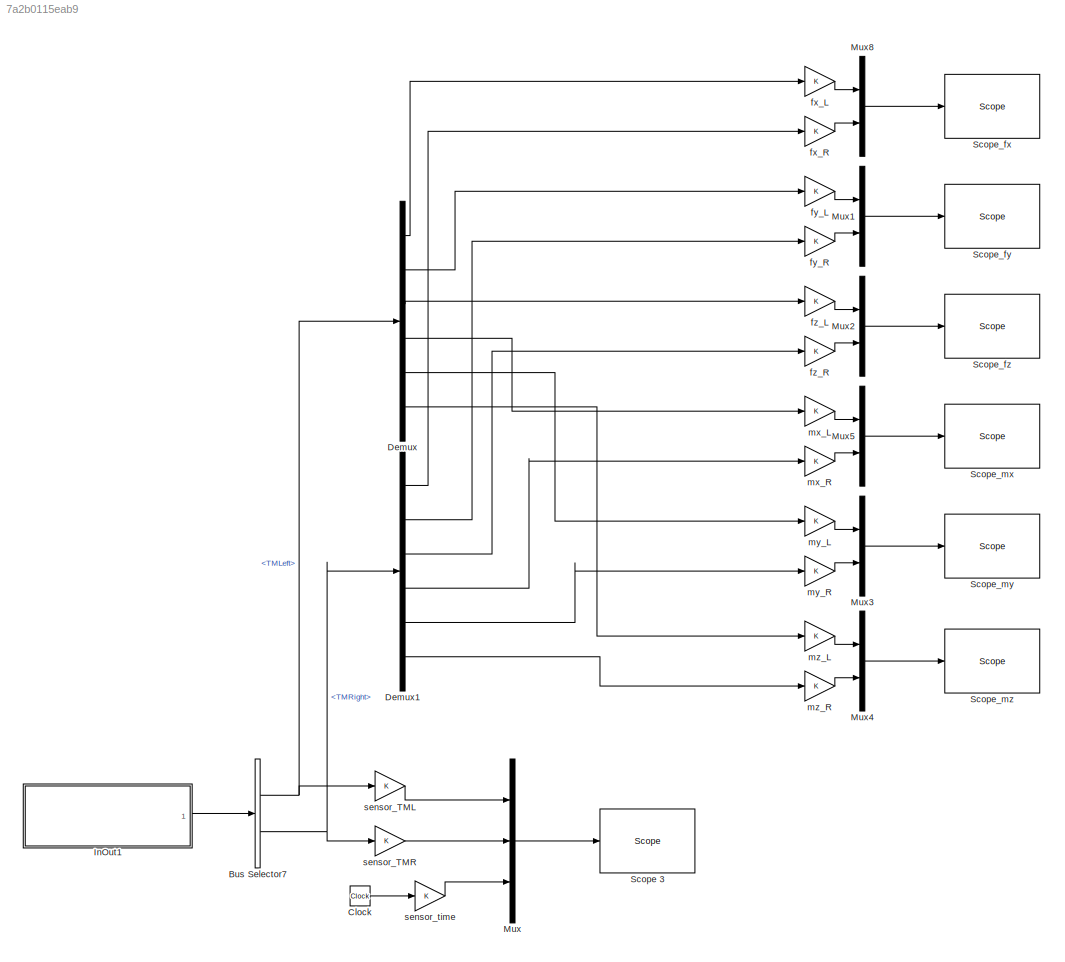
MODEL slx_7a2b0115eab9
KIND model
CONFIG AbsTol = auto
CONFIG EnableMultiTasking = on
CONFIG FixedStep = 0.001
CONFIG MaxStep = auto
CONFIG MinStep = auto
CONFIG RelTol = 1e-3
CONFIG SampleTimeConstraint = Unconstrained
CONFIG Solver = FixedStepDiscrete
CONFIG SolverName = FixedStepDiscrete
CONFIG StartTime = 0.0
CONFIG StopTime = inf
BLOCK [BusSelector] Bus Selector7
  OutputAsBus = off
  OutputSignals = TMLeft,TMRight
  Ports = [1, 2]
BLOCK [Clock] Clock
BLOCK [Demux] Demux
  DisplayOption = bar
  Outputs = 6
  Ports = [1, 6]
BLOCK [Demux] Demux1
  DisplayOption = bar
  Outputs = 6
  Ports = [1, 6]
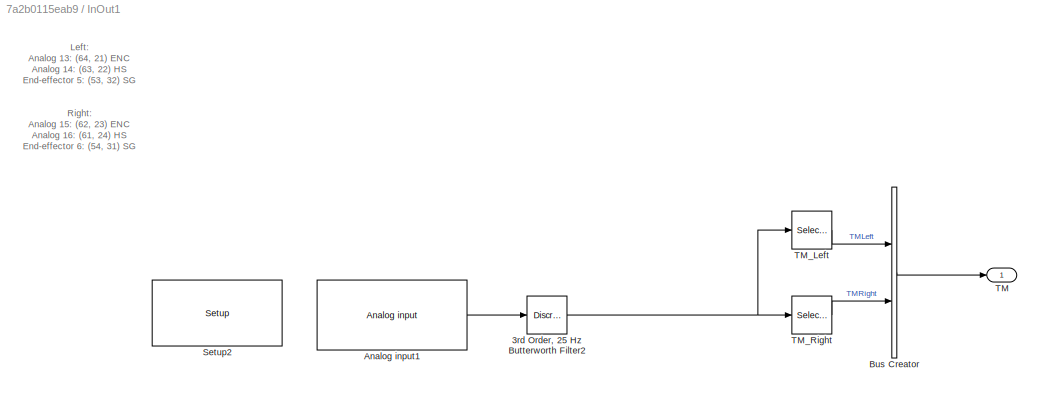
BLOCK [SubSystem] InOut1
  Ports = [0, 1]
  RequestExecContextInheritance = off
  Variant = off
BLOCK [DiscreteFilter] InOut1/3rd Order, 25 Hz Butterworth Filter2
  Denominator = [1	-2.68615739654814	2.41965511096647	-0.730165345305723]
  InputPortMap = u0
  Numerator = [0.000416546139075769	0.00124963841722731	0.00124963841722731	0.000416546139075769]
  Ports = [1, 1]
BLOCK [Reference] InOut1/Analog input1  REF=speedgoatlib_IO106/Analog input
  Ports = [0, 1]
  SourceBlock = speedgoatlib_IO106/Analog input
  SourceProductName = Simulink Real-Time: Speedgoat I/O Driver Library
  SourceType = ad_IO106
BLOCK [BusCreator] InOut1/Bus Creator
  DisplayOption = bar
  InheritFromInputs = on
  Inputs = 2
  Ports = [2, 1]
BLOCK [Reference] InOut1/Setup2  REF=speedgoatlib_IO106/Setup
  Ports = []
  SourceBlock = speedgoatlib_IO106/Setup
  SourceProductName = Simulink Real-Time: Speedgoat I/O Driver Library
  SourceType = setup_IO106
BLOCK [Outport] InOut1/TM
  IconDisplay = Port number
BLOCK [Selector] InOut1/TM_Left
  IndexOptions = Index vector (dialog)
  Indices = 1:6
  InputPortWidth = 12
  OutputSizes = 1
  Ports = [1, 1]
BLOCK [Selector] InOut1/TM_Right
  IndexOptions = Index vector (dialog)
  Indices = 7:12
  InputPortWidth = 12
  OutputSizes = 1
  Ports = [1, 1]
BLOCK [Mux] Mux
  DisplayOption = bar
  Inputs = 3
  Ports = [3, 1]
BLOCK [Mux] Mux1
  DisplayOption = bar
  Inputs = 2
  Ports = [2, 1]
BLOCK [Mux] Mux2
  DisplayOption = bar
  Inputs = 2
  Ports = [2, 1]
BLOCK [Mux] Mux3
  DisplayOption = bar
  Inputs = 2
  Ports = [2, 1]
BLOCK [Mux] Mux4
  DisplayOption = bar
  Inputs = 2
  Ports = [2, 1]
BLOCK [Mux] Mux5
  DisplayOption = bar
  Inputs = 2
  Ports = [2, 1]
BLOCK [Mux] Mux8
  DisplayOption = bar
  Inputs = 2
  Ports = [2, 1]
BLOCK [Reference] Scope 3  REF=slrtlib/Displays and
Logging/Scope 
  Ports = [1]
  SourceBlock = slrtlib/Displays and\nLogging/Scope
  SourceProductBaseCode = XP
  SourceProductName = Simulink Real-Time
  SourceType = xpcscopeblock
BLOCK [Reference] Scope_fx   REF=slrtlib/Displays and
Logging/Scope 
  Ports = [1]
  SourceBlock = slrtlib/Displays and\nLogging/Scope
  SourceProductBaseCode = XP
  SourceProductName = Simulink Real-Time
  SourceType = xpcscopeblock
BLOCK [Reference] Scope_fy  REF=slrtlib/Displays and
Logging/Scope 
  Ports = [1]
  SourceBlock = slrtlib/Displays and\nLogging/Scope
  SourceProductBaseCode = XP
  SourceProductName = Simulink Real-Time
  SourceType = xpcscopeblock
BLOCK [Reference] Scope_fz  REF=slrtlib/Displays and
Logging/Scope 
  Ports = [1]
  SourceBlock = slrtlib/Displays and\nLogging/Scope
  SourceProductBaseCode = XP
  SourceProductName = Simulink Real-Time
  SourceType = xpcscopeblock
BLOCK [Reference] Scope_mx  REF=slrtlib/Displays and
Logging/Scope 
  Ports = [1]
  SourceBlock = slrtlib/Displays and\nLogging/Scope
  SourceProductBaseCode = XP
  SourceProductName = Simulink Real-Time
  SourceType = xpcscopeblock
BLOCK [Reference] Scope_my  REF=slrtlib/Displays and
Logging/Scope 
  Ports = [1]
  SourceBlock = slrtlib/Displays and\nLogging/Scope
  SourceProductBaseCode = XP
  SourceProductName = Simulink Real-Time
  SourceType = xpcscopeblock
BLOCK [Reference] Scope_mz  REF=slrtlib/Displays and
Logging/Scope 
  Ports = [1]
  SourceBlock = slrtlib/Displays and\nLogging/Scope
  SourceProductBaseCode = XP
  SourceProductName = Simulink Real-Time
  SourceType = xpcscopeblock
BLOCK [Gain] fx_L
  OutDataTypeStr = Inherit: Inherit via internal rule
  ParamDataTypeStr = Inherit: Inherit via internal rule
  SaturateOnIntegerOverflow = off
BLOCK [Gain] fx_R
  OutDataTypeStr = Inherit: Inherit via internal rule
  ParamDataTypeStr = Inherit: Inherit via internal rule
  SaturateOnIntegerOverflow = off
BLOCK [Gain] fy_L
  OutDataTypeStr = Inherit: Inherit via internal rule
  ParamDataTypeStr = Inherit: Inherit via internal rule
  SaturateOnIntegerOverflow = off
BLOCK [Gain] fy_R
  OutDataTypeStr = Inherit: Inherit via internal rule
  ParamDataTypeStr = Inherit: Inherit via internal rule
  SaturateOnIntegerOverflow = off
BLOCK [Gain] fz_L
  OutDataTypeStr = Inherit: Inherit via internal rule
  ParamDataTypeStr = Inherit: Inherit via internal rule
  SaturateOnIntegerOverflow = off
BLOCK [Gain] fz_R
  OutDataTypeStr = Inherit: Inherit via internal rule
  ParamDataTypeStr = Inherit: Inherit via internal rule
  SaturateOnIntegerOverflow = off
BLOCK [Gain] mx_L
  OutDataTypeStr = Inherit: Inherit via internal rule
  ParamDataTypeStr = Inherit: Inherit via internal rule
  SaturateOnIntegerOverflow = off
BLOCK [Gain] mx_R
  OutDataTypeStr = Inherit: Inherit via internal rule
  ParamDataTypeStr = Inherit: Inherit via internal rule
  SaturateOnIntegerOverflow = off
BLOCK [Gain] my_L
  OutDataTypeStr = Inherit: Inherit via internal rule
  ParamDataTypeStr = Inherit: Inherit via internal rule
  SaturateOnIntegerOverflow = off
BLOCK [Gain] my_R
  OutDataTypeStr = Inherit: Inherit via internal rule
  ParamDataTypeStr = Inherit: Inherit via internal rule
  SaturateOnIntegerOverflow = off
BLOCK [Gain] mz_L
  OutDataTypeStr = Inherit: Inherit via internal rule
  ParamDataTypeStr = Inherit: Inherit via internal rule
  SaturateOnIntegerOverflow = off
BLOCK [Gain] mz_R
  OutDataTypeStr = Inherit: Inherit via internal rule
  ParamDataTypeStr = Inherit: Inherit via internal rule
  SaturateOnIntegerOverflow = off
BLOCK [Gain] sensor_TML
  OutDataTypeStr = Inherit: Inherit via internal rule
  ParamDataTypeStr = Inherit: Inherit via internal rule
  SaturateOnIntegerOverflow = off
BLOCK [Gain] sensor_TMR
  OutDataTypeStr = Inherit: Inherit via internal rule
  ParamDataTypeStr = Inherit: Inherit via internal rule
  SaturateOnIntegerOverflow = off
BLOCK [Gain] sensor_time
  OutDataTypeStr = Inherit: Inherit via internal rule
  ParamDataTypeStr = Inherit: Inherit via internal rule
  SaturateOnIntegerOverflow = off
ANNOTATION InOut1: Left: Analog 13: (64, 21) ENC Analog 14: (63, 22) HS End-effector 5: (53, 32) SG
ANNOTATION InOut1: Right: Analog 15: (62, 23) ENC Analog 16: (61, 24) HS End-effector 6: (54, 31) SG
NET Bus Selector7:1 -> Demux:1, sensor_TML:1
NET Bus Selector7:2 -> Demux1:1, sensor_TMR:1
LINE Clock:1 -> sensor_time:1
LINE Demux1:1 -> fx_R:1
LINE Demux1:2 -> fy_R:1
LINE Demux1:3 -> fz_R:1
LINE Demux1:4 -> mx_R:1
LINE Demux1:5 -> my_R:1
LINE Demux1:6 -> mz_R:1
LINE Demux:1 -> fx_L:1
LINE Demux:2 -> fy_L:1
LINE Demux:3 -> fz_L:1
LINE Demux:4 -> mx_L:1
LINE Demux:5 -> my_L:1
LINE Demux:6 -> mz_L:1
NET InOut1/3rd Order, 25 Hz Butterworth Filter2:1 -> InOut1/TM_Left:1, InOut1/TM_Right:1
LINE InOut1/Analog input1:1 -> InOut1/3rd Order, 25 Hz Butterworth Filter2:1
LINE InOut1/Bus Creator:1 -> InOut1/TM:1
LINE InOut1/TM_Left:1 -> InOut1/Bus Creator:1
LINE InOut1/TM_Right:1 -> InOut1/Bus Creator:2
LINE InOut1:1 -> Bus Selector7:1
LINE Mux1:1 -> Scope_fy:1
LINE Mux2:1 -> Scope_fz:1
LINE Mux3:1 -> Scope_my:1
LINE Mux4:1 -> Scope_mz:1
LINE Mux5:1 -> Scope_mx:1
LINE Mux8:1 -> Scope_fx :1
LINE Mux:1 -> Scope 3:1
LINE fx_L:1 -> Mux8:1
LINE fx_R:1 -> Mux8:2
LINE fy_L:1 -> Mux1:1
LINE fy_R:1 -> Mux1:2
LINE fz_L:1 -> Mux2:1
LINE fz_R:1 -> Mux2:2
LINE mx_L:1 -> Mux5:1
LINE mx_R:1 -> Mux5:2
LINE my_L:1 -> Mux3:1
LINE my_R:1 -> Mux3:2
LINE mz_L:1 -> Mux4:1
LINE mz_R:1 -> Mux4:2
LINE sensor_TML:1 -> Mux:1
LINE sensor_TMR:1 -> Mux:2
LINE sensor_time:1 -> Mux:3
note: NET lines group one-source signal fan-out (src -> all destinations, sorted); 1:1 wires keep LINE
